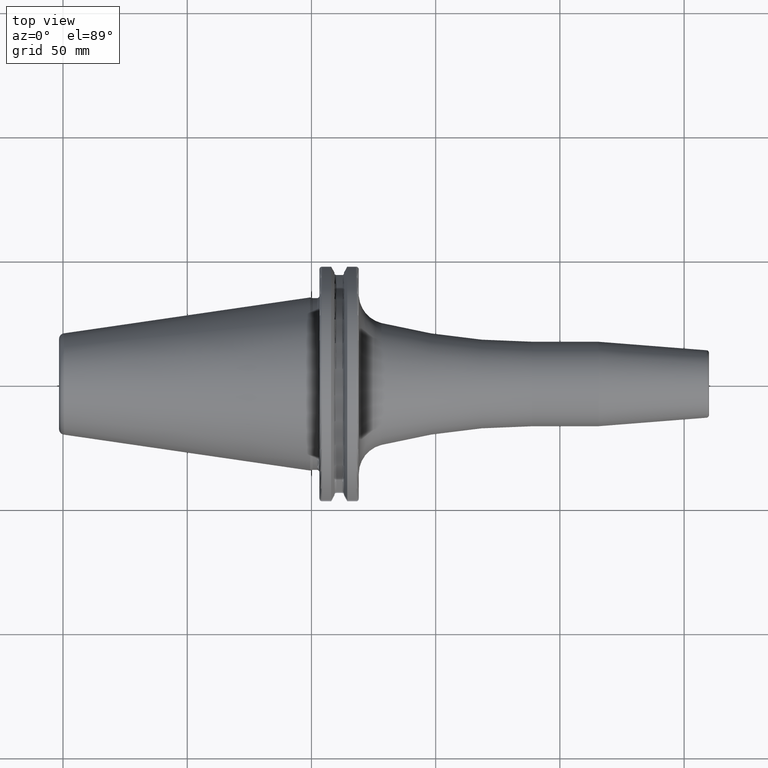
[diagram: clean part render]
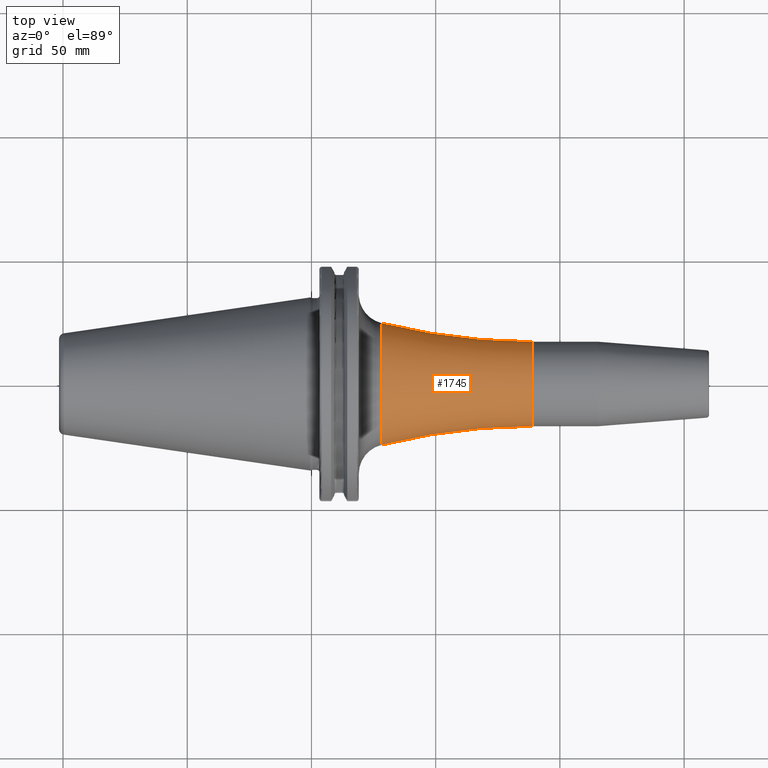
[diagram: same view with one face highlighted and labeled with its STEP entity id]
A machine part, top view. The second image highlights one B-rep face of the part: STEP entity #1745.
In plain terms, the highlighted toroidal blend (fillet) surface has major radius 267 mm and minor (blend) radius 250 mm.
Its self-contained STEP definition (entity closure, byte-faithful):
#184=CARTESIAN_POINT('',(2.812563025210E1,0.E0,0.E0));
#185=DIRECTION('',(1.E0,0.E0,0.E0));
#186=DIRECTION('',(0.E0,1.E0,0.E0));
#187=AXIS2_PLACEMENT_3D('',#184,#185,#186);
#194=CARTESIAN_POINT('',(8.905E1,-2.67E2,-6.539613907447E-14));
#195=DIRECTION('',(0.E0,0.E0,1.E0));
#196=DIRECTION('',(0.E0,1.E0,0.E0));
#197=AXIS2_PLACEMENT_3D('',#194,#195,#196);
#199=CARTESIAN_POINT('',(8.905E1,2.67E2,3.269806953723E-14));
#200=DIRECTION('',(0.E0,0.E0,-1.E0));
#201=DIRECTION('',(0.E0,-1.E0,0.E0));
#202=AXIS2_PLACEMENT_3D('',#199,#200,#201);
#234=CARTESIAN_POINT('',(8.905E1,0.E0,0.E0));
#235=DIRECTION('',(1.E0,0.E0,0.E0));
#236=DIRECTION('',(0.E0,1.E0,0.E0));
#237=AXIS2_PLACEMENT_3D('',#234,#235,#236);
#1490=CARTESIAN_POINT('',(8.905E1,1.7E1,0.E0));
#1491=CARTESIAN_POINT('',(8.905E1,-1.7E1,0.E0));
#1492=VERTEX_POINT('',#1490);
#1493=VERTEX_POINT('',#1491);
#1494=CARTESIAN_POINT('',(2.812563025210E1,2.453717569322E1,0.E0));
#1495=CARTESIAN_POINT('',(2.812563025210E1,-2.453717569322E1,0.E0));
#1496=VERTEX_POINT('',#1494);
#1497=VERTEX_POINT('',#1495);
#1731=CARTESIAN_POINT('',(8.905E1,0.E0,0.E0));
#1732=DIRECTION('',(1.E0,0.E0,0.E0));
#1733=DIRECTION('',(0.E0,-1.E0,0.E0));
#1734=AXIS2_PLACEMENT_3D('',#1731,#1732,#1733);
#1735=TOROIDAL_SURFACE('',#1734,2.67E2,2.5E2);
#1736=ORIENTED_EDGE('',*,*,#1720,.F.);
#1738=ORIENTED_EDGE('',*,*,#1737,.F.);
#1740=ORIENTED_EDGE('',*,*,#1739,.T.);
#1742=ORIENTED_EDGE('',*,*,#1741,.T.);
#1743=EDGE_LOOP('',(#1736,#1738,#1740,#1742));
#1744=FACE_OUTER_BOUND('',#1743,.F.);
#1745=ADVANCED_FACE('',(#1744),#1735,.F.);
#188=CIRCLE('',#187,2.453717569322E1);
#198=CIRCLE('',#197,2.5E2);
#203=CIRCLE('',#202,2.5E2);
#238=CIRCLE('',#237,1.7E1);
#1720=EDGE_CURVE('',#1496,#1497,#188,.T.);
#1737=EDGE_CURVE('',#1492,#1496,#203,.T.);
#1739=EDGE_CURVE('',#1492,#1493,#238,.T.);
#1741=EDGE_CURVE('',#1493,#1497,#198,.T.);